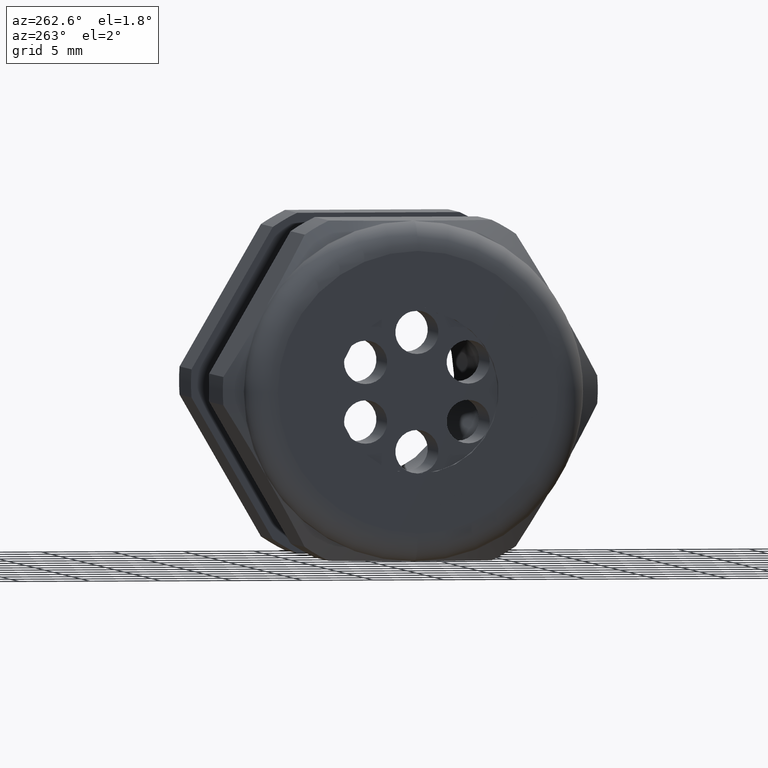
[diagram: clean part render]
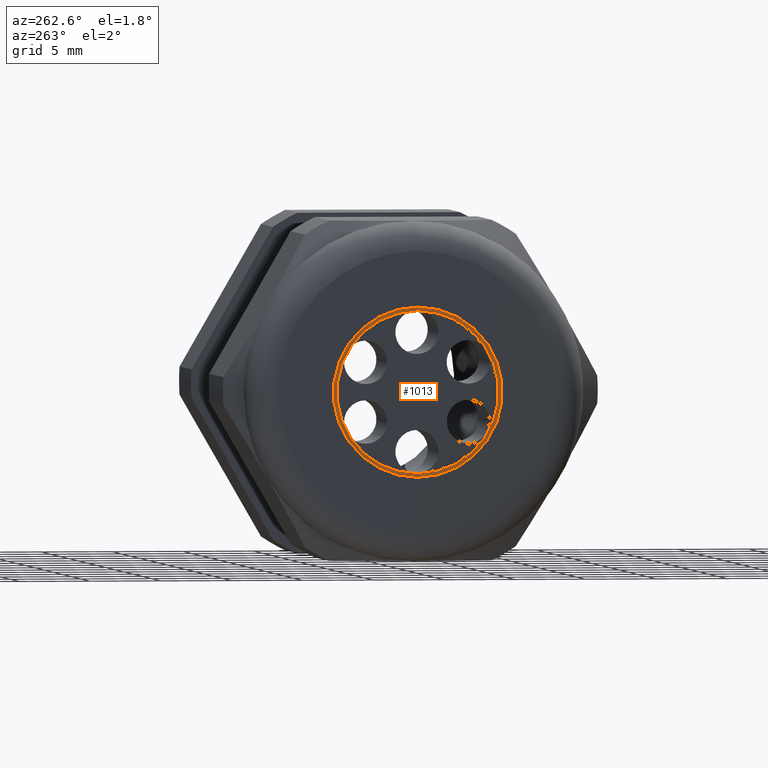
[diagram: same view with one face highlighted and labeled with its STEP entity id]
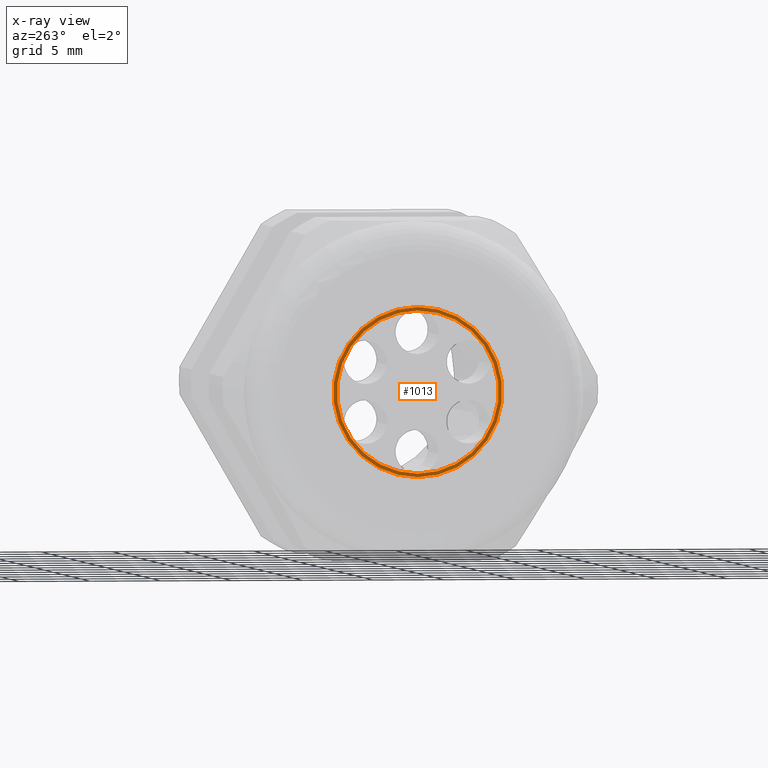
[diagram: x-ray of the same camera — body ghosted, the highlighted face saturated]
A machine part, auxiliary view. The second image highlights one B-rep face of the part: STEP entity #1013.
The next image is the same camera in x-ray: the body ghosted, the highlighted face saturated — about 0% of this face is hidden behind the body in this view.
In plain terms, the highlighted planar face has unit normal (-1, 0, 0).
Its self-contained STEP definition (entity closure, byte-faithful):
#929 = VERTEX_POINT ( 'NONE', #2813 ) ;
#937 = EDGE_CURVE ( 'NONE', #929, #938, #2861, .T. ) ;
#938 = VERTEX_POINT ( 'NONE', #2856 ) ;
#1013 = ADVANCED_FACE ( 'NONE', ( #2967, #2966 ), #2964, .T. ) ;
#1014 = EDGE_LOOP ( 'NONE', ( #1021, #1023 ) ) ;
#1021 = ORIENTED_EDGE ( 'NONE', *, *, #1022, .F. ) ;
#1022 = EDGE_CURVE ( 'NONE', #938, #929, #3020, .T. ) ;
#1023 = ORIENTED_EDGE ( 'NONE', *, *, #937, .F. ) ;
#1024 = EDGE_LOOP ( 'NONE', ( #1025, #1076 ) ) ;
#1025 = ORIENTED_EDGE ( 'NONE', *, *, #1054, .T. ) ;
#1053 = VERTEX_POINT ( 'NONE', #3038 ) ;
#1054 = EDGE_CURVE ( 'NONE', #1055, #1053, #3037, .T. ) ;
#1055 = VERTEX_POINT ( 'NONE', #3032 ) ;
#1068 = EDGE_CURVE ( 'NONE', #1053, #1055, #3078, .T. ) ;
#1076 = ORIENTED_EDGE ( 'NONE', *, *, #1068, .T. ) ;
#2813 = CARTESIAN_POINT ( 'NONE',  ( -1.409999999999999900, 2.755455298081544500E-017, -0.2249999999999999800 ) ) ;
#2856 = CARTESIAN_POINT ( 'NONE',  ( -1.409999999999999900, 0.0000000000000000000, 0.2249999999999999800 ) ) ;
#2857 = DIRECTION ( 'NONE',  ( 0.0000000000000000000, 0.0000000000000000000, 1.000000000000000000 ) ) ;
#2858 = DIRECTION ( 'NONE',  ( -1.000000000000000000, 0.0000000000000000000, 0.0000000000000000000 ) ) ;
#2859 = CARTESIAN_POINT ( 'NONE',  ( -1.409999999999999900, 0.0000000000000000000, 0.0000000000000000000 ) ) ;
#2860 = AXIS2_PLACEMENT_3D ( 'NONE', #2859, #2858, #2857 ) ;
#2861 = CIRCLE ( 'NONE', #2860, 0.2249999999999999800 ) ;
#2960 = DIRECTION ( 'NONE',  ( 0.0000000000000000000, 0.0000000000000000000, 1.000000000000000000 ) ) ;
#2961 = DIRECTION ( 'NONE',  ( -1.000000000000000000, 0.0000000000000000000, 0.0000000000000000000 ) ) ;
#2962 = CARTESIAN_POINT ( 'NONE',  ( -1.409999999999999900, 0.0000000000000000000, 0.0000000000000000000 ) ) ;
#2963 = AXIS2_PLACEMENT_3D ( 'NONE', #2962, #2961, #2960 ) ;
#2964 = PLANE ( 'NONE',  #2963 ) ;
#2966 = FACE_OUTER_BOUND ( 'NONE', #1024, .T. ) ;
#2967 = FACE_BOUND ( 'NONE', #1014, .T. ) ;
#3017 = DIRECTION ( 'NONE',  ( 0.0000000000000000000, 0.0000000000000000000, 1.000000000000000000 ) ) ;
#3018 = DIRECTION ( 'NONE',  ( -1.000000000000000000, 0.0000000000000000000, 0.0000000000000000000 ) ) ;
#3019 = AXIS2_PLACEMENT_3D ( 'NONE', #3026, #3018, #3017 ) ;
#3020 = CIRCLE ( 'NONE', #3019, 0.2249999999999999800 ) ;
#3026 = CARTESIAN_POINT ( 'NONE',  ( -1.409999999999999900, 0.0000000000000000000, 0.0000000000000000000 ) ) ;
#3032 = CARTESIAN_POINT ( 'NONE',  ( -1.409999999999999900, 0.0000000000000000000, 0.2349999999999999900 ) ) ;
#3033 = DIRECTION ( 'NONE',  ( 0.0000000000000000000, 0.0000000000000000000, 1.000000000000000000 ) ) ;
#3034 = DIRECTION ( 'NONE',  ( -1.000000000000000000, 0.0000000000000000000, 0.0000000000000000000 ) ) ;
#3035 = CARTESIAN_POINT ( 'NONE',  ( -1.409999999999999900, 0.0000000000000000000, 0.0000000000000000000 ) ) ;
#3036 = AXIS2_PLACEMENT_3D ( 'NONE', #3035, #3034, #3033 ) ;
#3037 = CIRCLE ( 'NONE', #3036, 0.2349999999999999900 ) ;
#3038 = CARTESIAN_POINT ( 'NONE',  ( -1.409999999999999900, 2.877919977996279800E-017, -0.2349999999999999900 ) ) ;
#3074 = DIRECTION ( 'NONE',  ( 0.0000000000000000000, 0.0000000000000000000, 1.000000000000000000 ) ) ;
#3075 = DIRECTION ( 'NONE',  ( -1.000000000000000000, 0.0000000000000000000, 0.0000000000000000000 ) ) ;
#3076 = CARTESIAN_POINT ( 'NONE',  ( -1.409999999999999900, 0.0000000000000000000, 0.0000000000000000000 ) ) ;
#3077 = AXIS2_PLACEMENT_3D ( 'NONE', #3076, #3075, #3074 ) ;
#3078 = CIRCLE ( 'NONE', #3077, 0.2349999999999999900 ) ;